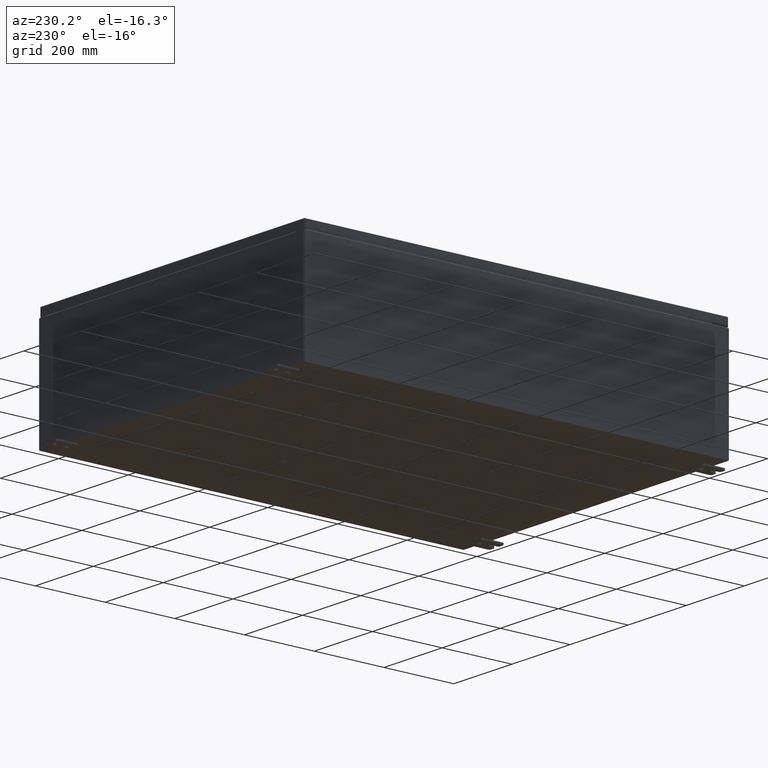
[diagram: clean part render]
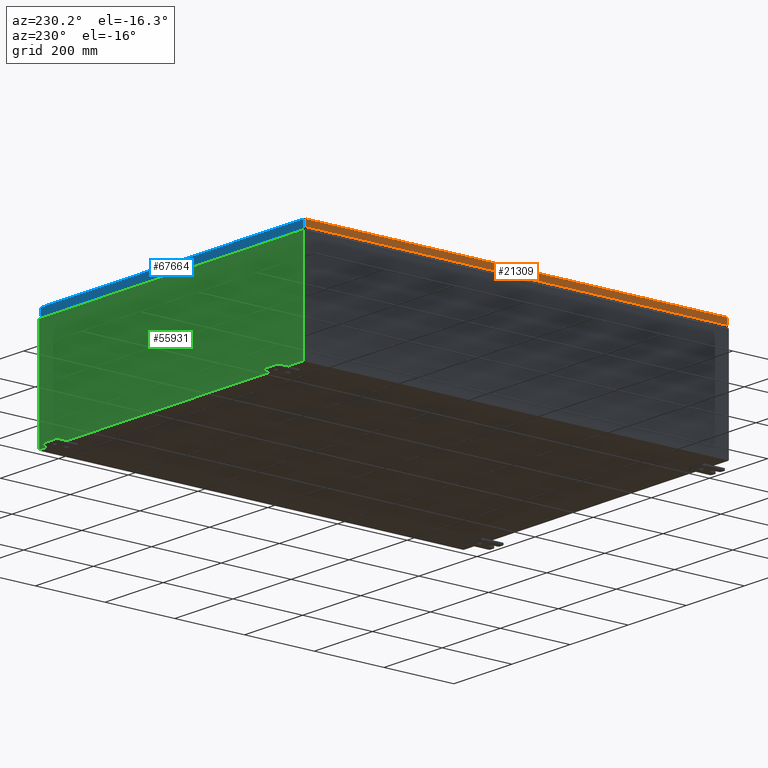
[diagram: same view with three faces highlighted in distinct colors, each labeled with its STEP entity id]
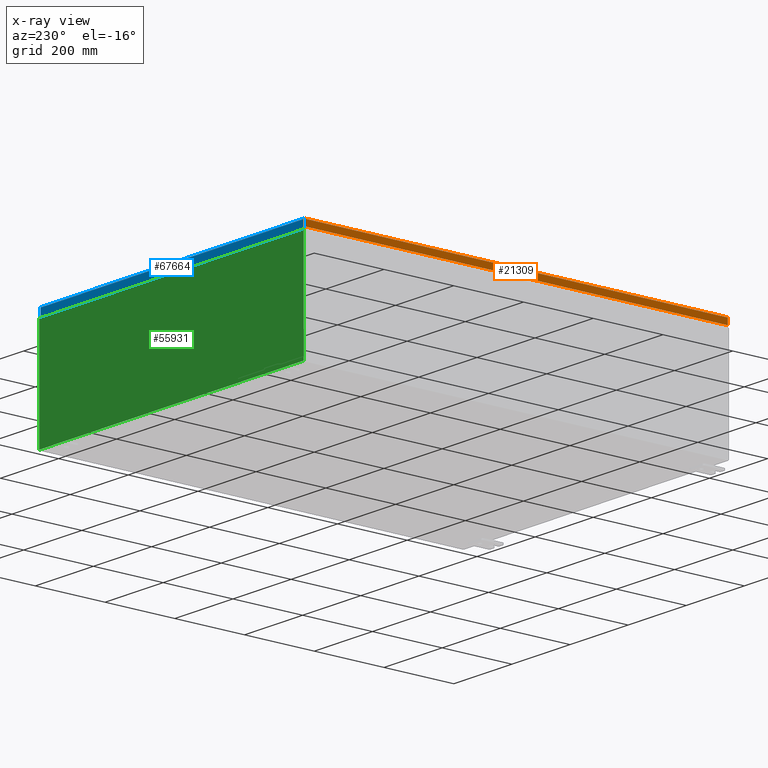
[diagram: x-ray of the same camera — body ghosted, the three highlighted faces saturated]
A machine part, auxiliary view with three faces highlighted in distinct colors.
The next image is the same camera in x-ray (body ghosted, the three faces saturated) — at least one of them is partly hidden behind the body in this view.
Their STEP definitions:

[orange] entity #21309 — the highlighted planar face has unit normal (1, -0, -0).
#1959 = ORIENTED_EDGE ( 'NONE', *, *, #5630, .F. ) ;
#4727 = CARTESIAN_POINT ( 'NONE',  ( -17.93750000000000000, -23.93750000000000000, -0.7949999999999997100 ) ) ;
#5630 = EDGE_CURVE ( 'NONE', #53843, #16166, #12845, .T. ) ;
#8070 = EDGE_CURVE ( 'NONE', #35659, #60710, #33417, .T. ) ;
#10693 = CARTESIAN_POINT ( 'NONE',  ( -17.93749999999999600, 23.84865786437627100, 2.212196727382094500E-013 ) ) ;
#12845 = LINE ( 'NONE', #19784, #42737 ) ;
#15688 = VECTOR ( 'NONE', #33395, 39.37007874015748100 ) ;
#16062 = AXIS2_PLACEMENT_3D ( 'NONE', #17543, #60202, #28399 ) ;
#16166 = VERTEX_POINT ( 'NONE', #49119 ) ;
#17543 = CARTESIAN_POINT ( 'NONE',  ( -17.93749999999999600, 1.637682243721441900E-015, 5.468538495836084400E-014 ) ) ;
#17573 = EDGE_LOOP ( 'NONE', ( #1959, #64001, #38278, #25747 ) ) ;
#19784 = CARTESIAN_POINT ( 'NONE',  ( -17.93750000000000000, -23.93750000000000000, -0.08770000000000004200 ) ) ;
#20810 = FACE_OUTER_BOUND ( 'NONE', #17573, .T. ) ;
#21309 = ADVANCED_FACE ( 'NONE', ( #20810 ), #23098, .F. ) ;
#23098 = PLANE ( 'NONE',  #16062 ) ;
#23524 = CARTESIAN_POINT ( 'NONE',  ( -17.93750000000000000, -23.84865786437626800, -0.7949999999999996000 ) ) ;
#25747 = ORIENTED_EDGE ( 'NONE', *, *, #46160, .F. ) ;
#28399 = DIRECTION ( 'NONE',  ( -3.034122441942816500E-015, 0.0000000000000000000, -1.000000000000000000 ) ) ;
#31374 = DIRECTION ( 'NONE',  ( -3.034122441942816500E-015, 6.982962677686267500E-015, -1.000000000000000000 ) ) ;
#33395 = DIRECTION ( 'NONE',  ( -3.034122441942816500E-015, 6.982962677686267500E-015, -1.000000000000000000 ) ) ;
#33417 = LINE ( 'NONE', #4727, #45911 ) ;
#35659 = VERTEX_POINT ( 'NONE', #23524 ) ;
#36124 = CARTESIAN_POINT ( 'NONE',  ( -17.93749999999999600, 23.84865786437627100, -0.08770000000000659200 ) ) ;
#38278 = ORIENTED_EDGE ( 'NONE', *, *, #8070, .F. ) ;
#42737 = VECTOR ( 'NONE', #51549, 39.37007874015748100 ) ;
#45911 = VECTOR ( 'NONE', #52338, 39.37007874015748100 ) ;
#46160 = EDGE_CURVE ( 'NONE', #16166, #35659, #54678, .T. ) ;
#48451 = EDGE_CURVE ( 'NONE', #53843, #60710, #53462, .T. ) ;
#49119 = CARTESIAN_POINT ( 'NONE',  ( -17.93750000000000000, -23.84865786437626800, -0.08770000000000334500 ) ) ;
#49198 = CARTESIAN_POINT ( 'NONE',  ( -17.93750000000000000, -23.84865786437627100, -0.07469999999999976700 ) ) ;
#51549 = DIRECTION ( 'NONE',  ( -9.129935853499285800E-017, -1.000000000000000000, 1.369490378024904800E-016 ) ) ;
#52338 = DIRECTION ( 'NONE',  ( 9.129935853499365900E-017, 1.000000000000000000, 1.226835130313977200E-016 ) ) ;
#53462 = LINE ( 'NONE', #10693, #67646 ) ;
#53843 = VERTEX_POINT ( 'NONE', #36124 ) ;
#54678 = LINE ( 'NONE', #49198, #15688 ) ;
#55184 = CARTESIAN_POINT ( 'NONE',  ( -17.93749999999999600, 23.84865786437627500, -0.7949999999999938200 ) ) ;
#60202 = DIRECTION ( 'NONE',  ( 1.000000000000000000, -9.129935853499329000E-017, -3.034122441942816500E-015 ) ) ;
#60710 = VERTEX_POINT ( 'NONE', #55184 ) ;
#64001 = ORIENTED_EDGE ( 'NONE', *, *, #48451, .T. ) ;
#67646 = VECTOR ( 'NONE', #31374, 39.37007874015748100 ) ;

[blue] entity #67664 — the highlighted planar face has unit normal (0, -1, -0).
#11526 = VECTOR ( 'NONE', #11712, 39.37007874015748100 ) ;
#11712 = DIRECTION ( 'NONE',  ( -1.000000000000000000, -6.170925750089125200E-031, -3.189293793798670500E-045 ) ) ;
#12240 = CARTESIAN_POINT ( 'NONE',  ( 17.84865786437627100, 23.93750000000000700, -0.9376999999999997600 ) ) ;
#13038 = VECTOR ( 'NONE', #33568, 39.37007874015748100 ) ;
#13338 = EDGE_CURVE ( 'NONE', #42741, #55694, #50498, .T. ) ;
#14530 = CARTESIAN_POINT ( 'NONE',  ( -1.477165351427584500E-029, 23.93750000000000400, 1.215004175463253400E-013 ) ) ;
#17070 = CARTESIAN_POINT ( 'NONE',  ( -17.93749999999999600, 23.93750000000000400, -0.08769999999999550400 ) ) ;
#19412 = PLANE ( 'NONE',  #47700 ) ;
#19700 = CARTESIAN_POINT ( 'NONE',  ( -17.84865786437626100, 23.93750000000000400, -0.08769999999999550400 ) ) ;
#19867 = DIRECTION ( 'NONE',  ( 0.0000000000000000000, 5.064839849203706900E-015, -1.000000000000000000 ) ) ;
#22504 = ORIENTED_EDGE ( 'NONE', *, *, #25241, .T. ) ;
#22505 = ORIENTED_EDGE ( 'NONE', *, *, #29041, .F. ) ;
#25241 = EDGE_CURVE ( 'NONE', #60479, #55694, #45446, .T. ) ;
#29041 = EDGE_CURVE ( 'NONE', #60479, #63053, #68046, .T. ) ;
#29639 = VECTOR ( 'NONE', #68179, 39.37007874015748100 ) ;
#33568 = DIRECTION ( 'NONE',  ( -0.0000000000000000000, 5.064839849203706900E-015, -1.000000000000000000 ) ) ;
#35648 = DIRECTION ( 'NONE',  ( 1.000000000000000000, 8.758115402030108600E-047, 1.218385167906012900E-016 ) ) ;
#36379 = VECTOR ( 'NONE', #35648, 39.37007874015748100 ) ;
#38039 = EDGE_LOOP ( 'NONE', ( #22505, #22504, #43169, #41992 ) ) ;
#41695 = CARTESIAN_POINT ( 'NONE',  ( 17.84865786437627500, 23.93750000000000400, 1.215004175463253400E-013 ) ) ;
#41992 = ORIENTED_EDGE ( 'NONE', *, *, #65936, .F. ) ;
#42741 = VERTEX_POINT ( 'NONE', #60259 ) ;
#43169 = ORIENTED_EDGE ( 'NONE', *, *, #13338, .F. ) ;
#45446 = LINE ( 'NONE', #41695, #29639 ) ;
#45891 = CARTESIAN_POINT ( 'NONE',  ( -17.93749999999999600, 23.93750000000000700, -0.9377000000000042000 ) ) ;
#47700 = AXIS2_PLACEMENT_3D ( 'NONE', #14530, #51635, #19867 ) ;
#48246 = CARTESIAN_POINT ( 'NONE',  ( 17.84865786437627100, 23.93750000000000400, -0.08769999999999550400 ) ) ;
#50498 = LINE ( 'NONE', #45891, #36379 ) ;
#51635 = DIRECTION ( 'NONE',  ( 6.170925750089124300E-031, -1.000000000000000000, -5.064839849203706900E-015 ) ) ;
#55423 = LINE ( 'NONE', #65340, #13038 ) ;
#55694 = VERTEX_POINT ( 'NONE', #12240 ) ;
#56181 = FACE_OUTER_BOUND ( 'NONE', #38039, .T. ) ;
#60259 = CARTESIAN_POINT ( 'NONE',  ( -17.84865786437626100, 23.93750000000000700, -0.9377000000000042000 ) ) ;
#60479 = VERTEX_POINT ( 'NONE', #48246 ) ;
#63053 = VERTEX_POINT ( 'NONE', #19700 ) ;
#65340 = CARTESIAN_POINT ( 'NONE',  ( -17.84865786437626100, 23.93750000000000400, -0.07469999999999962800 ) ) ;
#65936 = EDGE_CURVE ( 'NONE', #63053, #42741, #55423, .T. ) ;
#67664 = ADVANCED_FACE ( 'NONE', ( #56181 ), #19412, .F. ) ;
#68046 = LINE ( 'NONE', #17070, #11526 ) ;
#68179 = DIRECTION ( 'NONE',  ( 0.0000000000000000000, 5.064839849203706900E-015, -1.000000000000000000 ) ) ;

[green] entity #55931 — the highlighted planar face has unit normal (0, -1, 0).
#790 = CARTESIAN_POINT ( 'NONE',  ( 16.90587500000000200, 0.0000000000000000000, 5.874949999999999200 ) ) ;
#1737 = AXIS2_PLACEMENT_3D ( 'NONE', #54835, #23037, #60138 ) ;
#2910 = CARTESIAN_POINT ( 'NONE',  ( 17.92530000000000400, 0.0000000000000000000, 5.925300000000000000 ) ) ;
#3541 = VERTEX_POINT ( 'NONE', #63327 ) ;
#4407 = DIRECTION ( 'NONE',  ( -8.681145560799821800E-014, 0.0000000000000000000, -1.000000000000000000 ) ) ;
#4857 = VECTOR ( 'NONE', #31830, 39.37007874015748100 ) ;
#5660 = VERTEX_POINT ( 'NONE', #9056 ) ;
#5742 = LINE ( 'NONE', #6959, #34010 ) ;
#6110 = DIRECTION ( 'NONE',  ( 0.0000000000000000000, 0.0000000000000000000, -1.000000000000000000 ) ) ;
#6439 = CARTESIAN_POINT ( 'NONE',  ( -17.92529999999999600, 0.0000000000000000000, -5.925300000000000000 ) ) ;
#6959 = CARTESIAN_POINT ( 'NONE',  ( 16.88720000000000000, 0.0000000000000000000, 0.0000000000000000000 ) ) ;
#7618 = EDGE_LOOP ( 'NONE', ( #39871, #13973, #31417, #66286, #48153, #30073, #36448, #10995, #19850, #44770, #44260, #52358 ) ) ;
#8215 = CIRCLE ( 'NONE', #1737, 0.01867499999999949400 ) ;
#8557 = VERTEX_POINT ( 'NONE', #2910 ) ;
#9056 = CARTESIAN_POINT ( 'NONE',  ( -16.88719999999998900, -0.0000000000000000000, 5.874949999999999200 ) ) ;
#9116 = VECTOR ( 'NONE', #13771, 39.37007874015748100 ) ;
#9143 = DIRECTION ( 'NONE',  ( 1.000000000000000000, 0.0000000000000000000, 3.048036009064577000E-017 ) ) ;
#10995 = ORIENTED_EDGE ( 'NONE', *, *, #56963, .T. ) ;
#11751 = VECTOR ( 'NONE', #53327, 39.37007874015748100 ) ;
#11756 = EDGE_CURVE ( 'NONE', #54703, #37175, #17405, .T. ) ;
#13771 = DIRECTION ( 'NONE',  ( 1.000000000000000000, 0.0000000000000000000, 3.048036009064577000E-017 ) ) ;
#13973 = ORIENTED_EDGE ( 'NONE', *, *, #63543, .F. ) ;
#14043 = EDGE_CURVE ( 'NONE', #56557, #5660, #57131, .T. ) ;
#15755 = CIRCLE ( 'NONE', #33415, 0.01867499999999949400 ) ;
#16452 = LINE ( 'NONE', #32951, #28881 ) ;
#16492 = LINE ( 'NONE', #17525, #43047 ) ;
#17405 = LINE ( 'NONE', #56547, #45654 ) ;
#17525 = CARTESIAN_POINT ( 'NONE',  ( -16.92454999999998900, -0.0000000000000000000, 0.0000000000000000000 ) ) ;
#18329 = FACE_OUTER_BOUND ( 'NONE', #7618, .T. ) ;
#18404 = CARTESIAN_POINT ( 'NONE',  ( -17.92529999999999600, 0.0000000000000000000, 5.925299999999999100 ) ) ;
#18690 = EDGE_CURVE ( 'NONE', #21093, #53774, #33606, .T. ) ;
#19001 = DIRECTION ( 'NONE',  ( 0.0000000000000000000, -1.000000000000000000, 0.0000000000000000000 ) ) ;
#19850 = ORIENTED_EDGE ( 'NONE', *, *, #58724, .T. ) ;
#20450 = CARTESIAN_POINT ( 'NONE',  ( 16.92454999999949200, -0.0000000000000000000, -1.469244821010302200E-012 ) ) ;
#21093 = VERTEX_POINT ( 'NONE', #58612 ) ;
#22432 = EDGE_CURVE ( 'NONE', #53774, #59569, #15755, .T. ) ;
#23037 = DIRECTION ( 'NONE',  ( -0.0000000000000000000, 1.000000000000000000, -0.0000000000000000000 ) ) ;
#23473 = EDGE_CURVE ( 'NONE', #56557, #3541, #28078, .T. ) ;
#24705 = DIRECTION ( 'NONE',  ( -0.0000000000000000000, -0.0000000000000000000, 1.000000000000000000 ) ) ;
#25270 = AXIS2_PLACEMENT_3D ( 'NONE', #50790, #19001, #56147 ) ;
#26694 = CARTESIAN_POINT ( 'NONE',  ( 16.88720000000000000, 0.0000000000000000000, 5.874949999999999200 ) ) ;
#26853 = CARTESIAN_POINT ( 'NONE',  ( -17.92529999999999600, 0.0000000000000000000, -5.925300000000000000 ) ) ;
#28078 = LINE ( 'NONE', #63638, #4857 ) ;
#28822 = VECTOR ( 'NONE', #61850, 39.37007874015748100 ) ;
#28881 = VECTOR ( 'NONE', #54067, 39.37007874015748100 ) ;
#30073 = ORIENTED_EDGE ( 'NONE', *, *, #22432, .F. ) ;
#31417 = ORIENTED_EDGE ( 'NONE', *, *, #14043, .F. ) ;
#31830 = DIRECTION ( 'NONE',  ( 1.000000000000000000, 0.0000000000000000000, 0.0000000000000000000 ) ) ;
#32951 = CARTESIAN_POINT ( 'NONE',  ( 17.92530000000000400, 0.0000000000000000000, 5.925300000000000000 ) ) ;
#33030 = EDGE_CURVE ( 'NONE', #46082, #54703, #56158, .T. ) ;
#33415 = AXIS2_PLACEMENT_3D ( 'NONE', #790, #37945, #6110 ) ;
#33606 = LINE ( 'NONE', #20450, #47749 ) ;
#34010 = VECTOR ( 'NONE', #38802, 39.37007874015748100 ) ;
#34728 = CARTESIAN_POINT ( 'NONE',  ( -16.92454999999998900, 0.0000000000000000000, 5.874949999999999200 ) ) ;
#35446 = CARTESIAN_POINT ( 'NONE',  ( 16.92455000000000000, 0.0000000000000000000, 5.874949999999999200 ) ) ;
#36448 = ORIENTED_EDGE ( 'NONE', *, *, #18690, .F. ) ;
#36462 = EDGE_CURVE ( 'NONE', #44183, #37175, #16492, .T. ) ;
#37175 = VERTEX_POINT ( 'NONE', #60391 ) ;
#37945 = DIRECTION ( 'NONE',  ( -0.0000000000000000000, 1.000000000000000000, -0.0000000000000000000 ) ) ;
#38802 = DIRECTION ( 'NONE',  ( 0.0000000000000000000, 0.0000000000000000000, 1.000000000000000000 ) ) ;
#39317 = VERTEX_POINT ( 'NONE', #66801 ) ;
#39871 = ORIENTED_EDGE ( 'NONE', *, *, #36462, .F. ) ;
#40022 = LINE ( 'NONE', #26853, #11751 ) ;
#43047 = VECTOR ( 'NONE', #59950, 39.37007874015748100 ) ;
#43272 = EDGE_CURVE ( 'NONE', #59569, #3541, #5742, .T. ) ;
#44183 = VERTEX_POINT ( 'NONE', #34728 ) ;
#44260 = ORIENTED_EDGE ( 'NONE', *, *, #33030, .T. ) ;
#44770 = ORIENTED_EDGE ( 'NONE', *, *, #60449, .T. ) ;
#44811 = LINE ( 'NONE', #45556, #9116 ) ;
#45556 = CARTESIAN_POINT ( 'NONE',  ( -17.92529999999999600, 0.0000000000000000000, 5.925299999999999100 ) ) ;
#45654 = VECTOR ( 'NONE', #9143, 39.37007874015748100 ) ;
#46082 = VERTEX_POINT ( 'NONE', #6439 ) ;
#47749 = VECTOR ( 'NONE', #4407, 39.37007874015748100 ) ;
#48153 = ORIENTED_EDGE ( 'NONE', *, *, #43272, .F. ) ;
#50790 = CARTESIAN_POINT ( 'NONE',  ( 0.0000000000000000000, 0.0000000000000000000, 0.0000000000000000000 ) ) ;
#51184 = CARTESIAN_POINT ( 'NONE',  ( -16.88719999999998900, -0.0000000000000000000, 0.0000000000000000000 ) ) ;
#52358 = ORIENTED_EDGE ( 'NONE', *, *, #11756, .T. ) ;
#53327 = DIRECTION ( 'NONE',  ( -1.000000000000000000, -0.0000000000000000000, -0.0000000000000000000 ) ) ;
#53774 = VERTEX_POINT ( 'NONE', #35446 ) ;
#54067 = DIRECTION ( 'NONE',  ( 0.0000000000000000000, 0.0000000000000000000, -1.000000000000000000 ) ) ;
#54405 = CARTESIAN_POINT ( 'NONE',  ( -16.88719999999998900, 3.756290991288361700E-016, 5.912299999999999200 ) ) ;
#54703 = VERTEX_POINT ( 'NONE', #18404 ) ;
#54835 = CARTESIAN_POINT ( 'NONE',  ( -16.90587499999999100, 0.0000000000000000000, 5.874949999999999200 ) ) ;
#55931 = ADVANCED_FACE ( 'NONE', ( #18329 ), #61204, .F. ) ;
#56147 = DIRECTION ( 'NONE',  ( 0.0000000000000000000, -0.0000000000000000000, -1.000000000000000000 ) ) ;
#56158 = LINE ( 'NONE', #56545, #57801 ) ;
#56545 = CARTESIAN_POINT ( 'NONE',  ( -17.92529999999999600, 0.0000000000000000000, 5.925299999999999100 ) ) ;
#56547 = CARTESIAN_POINT ( 'NONE',  ( -17.92529999999999600, 0.0000000000000000000, 5.925299999999999100 ) ) ;
#56557 = VERTEX_POINT ( 'NONE', #54405 ) ;
#56963 = EDGE_CURVE ( 'NONE', #21093, #8557, #44811, .T. ) ;
#57131 = LINE ( 'NONE', #51184, #28822 ) ;
#57801 = VECTOR ( 'NONE', #24705, 39.37007874015748100 ) ;
#58612 = CARTESIAN_POINT ( 'NONE',  ( 16.92455000000000400, 0.0000000000000000000, 5.925300000000000000 ) ) ;
#58724 = EDGE_CURVE ( 'NONE', #8557, #39317, #16452, .T. ) ;
#59569 = VERTEX_POINT ( 'NONE', #26694 ) ;
#59950 = DIRECTION ( 'NONE',  ( 0.0000000000000000000, 0.0000000000000000000, 1.000000000000000000 ) ) ;
#60138 = DIRECTION ( 'NONE',  ( 0.0000000000000000000, 0.0000000000000000000, -1.000000000000000000 ) ) ;
#60391 = CARTESIAN_POINT ( 'NONE',  ( -16.92454999999998900, 0.0000000000000000000, 5.925299999999999100 ) ) ;
#60449 = EDGE_CURVE ( 'NONE', #39317, #46082, #40022, .T. ) ;
#61204 = PLANE ( 'NONE',  #25270 ) ;
#61850 = DIRECTION ( 'NONE',  ( 0.0000000000000000000, 0.0000000000000000000, -1.000000000000000000 ) ) ;
#63327 = CARTESIAN_POINT ( 'NONE',  ( 16.88720000000000000, 0.0000000000000000000, 5.912299999999999200 ) ) ;
#63543 = EDGE_CURVE ( 'NONE', #5660, #44183, #8215, .T. ) ;
#63638 = CARTESIAN_POINT ( 'NONE',  ( -16.88719999999999600, 3.756290991288361700E-016, 5.912299999999999200 ) ) ;
#66286 = ORIENTED_EDGE ( 'NONE', *, *, #23473, .T. ) ;
#66801 = CARTESIAN_POINT ( 'NONE',  ( 17.92530000000000400, 0.0000000000000000000, -5.925300000000000000 ) ) ;